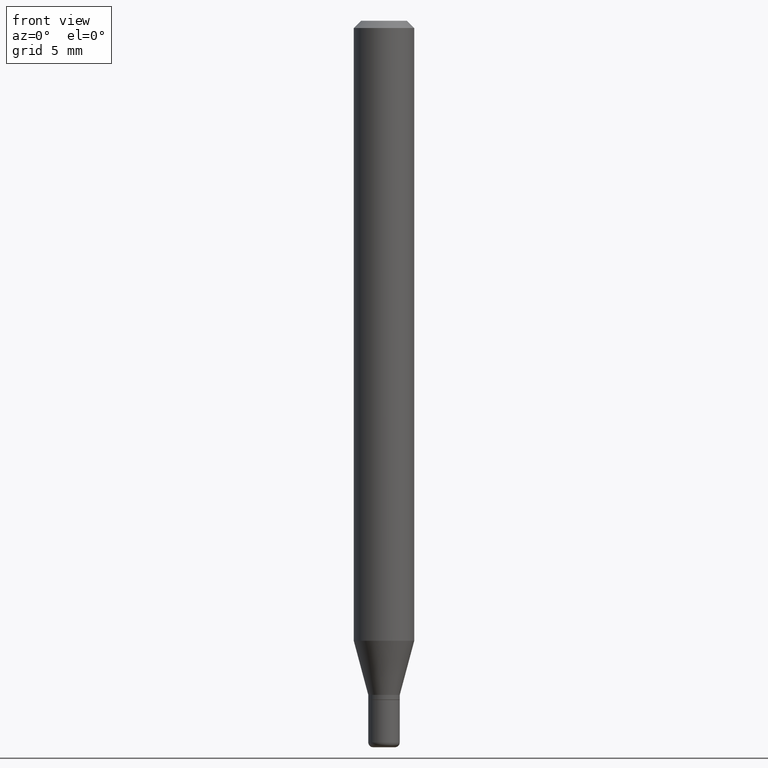
[diagram: clean part render]
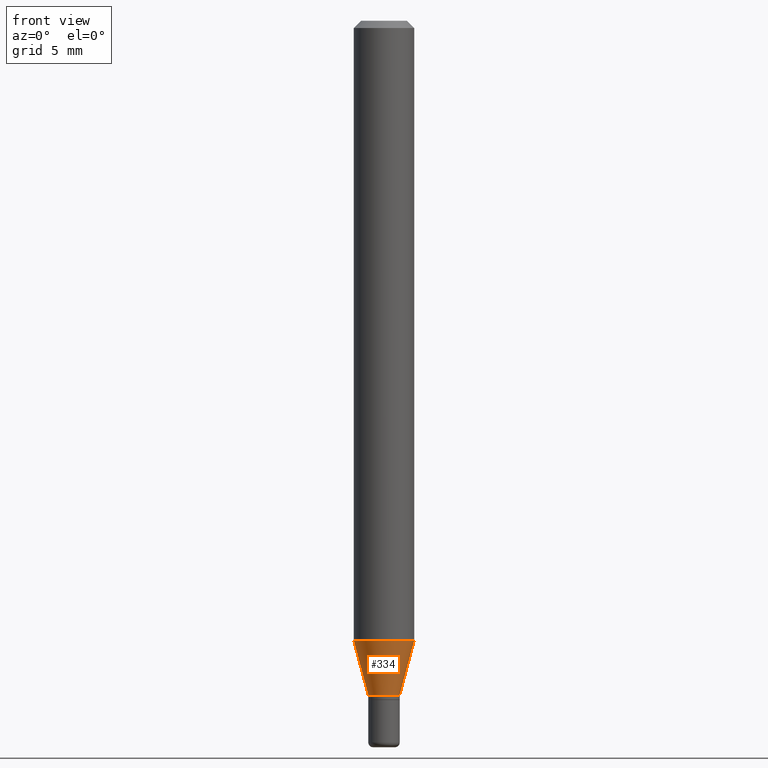
[diagram: same view with one face highlighted and labeled with its STEP entity id]
A machine part, front view. The second image highlights one B-rep face of the part: STEP entity #334.
In plain terms, the highlighted conical surface has half-angle 15 deg.
Its self-contained STEP definition (entity closure, byte-faithful):
#30 = VECTOR ( 'NONE', #476, 39.37007874015748143 ) ;
#43 = DIRECTION ( 'NONE',  ( -2.445468806185136597E-29, 3.491481338843145583E-15, 1.000000000000000000 ) ) ;
#45 = FACE_OUTER_BOUND ( 'NONE', #265, .T. ) ;
#50 = VERTEX_POINT ( 'NONE', #458 ) ;
#64 = AXIS2_PLACEMENT_3D ( 'NONE', #289, #43, #414 ) ;
#97 = ORIENTED_EDGE ( 'NONE', *, *, #402, .F. ) ;
#120 = CARTESIAN_POINT ( 'NONE',  ( 0.03249999999999998029, -5.087088310694461770E-15, -1.392000000000000126 ) ) ;
#130 = AXIS2_PLACEMENT_3D ( 'NONE', #386, #235, #468 ) ;
#146 = CIRCLE ( 'NONE', #276, 0.03249999999999998029 ) ;
#153 = CARTESIAN_POINT ( 'NONE',  ( 0.06250000000000000000, -4.905665618517812299E-15, -1.280038475772933504 ) ) ;
#162 = DIRECTION ( 'NONE',  ( 0.2588190451025204064, 1.565188264969629659E-15, 0.9659258262890684232 ) ) ;
#189 = CARTESIAN_POINT ( 'NONE',  ( -0.06250000000000000000, -4.025141241312358014E-15, -1.280038475772933504 ) ) ;
#206 = ORIENTED_EDGE ( 'NONE', *, *, #450, .F. ) ;
#232 = VECTOR ( 'NONE', #162, 39.37007874015748143 ) ;
#235 = DIRECTION ( 'NONE',  ( -2.445468806185136597E-29, 3.491481338843145583E-15, 1.000000000000000000 ) ) ;
#237 = DIRECTION ( 'NONE',  ( -2.445468806185136597E-29, 3.491481338843145583E-15, 1.000000000000000000 ) ) ;
#238 = CONICAL_SURFACE ( 'NONE', #64, 0.03249999999999998029, 0.2617993877991490748 ) ;
#240 = VERTEX_POINT ( 'NONE', #189 ) ;
#255 = EDGE_CURVE ( 'NONE', #495, #415, #475, .T. ) ;
#265 = EDGE_LOOP ( 'NONE', ( #206, #455, #487, #97 ) ) ;
#266 = DIRECTION ( 'NONE',  ( 1.000000000000000000, -6.982962677686262766E-15, 0.000000000000000000 ) ) ;
#276 = AXIS2_PLACEMENT_3D ( 'NONE', #303, #237, #266 ) ;
#289 = CARTESIAN_POINT ( 'NONE',  ( 3.404092578209710223E-29, -4.860142023669658418E-15, -1.392000000000000126 ) ) ;
#303 = CARTESIAN_POINT ( 'NONE',  ( 3.404092578209710223E-29, -4.860142023669658418E-15, -1.392000000000000126 ) ) ;
#334 = ADVANCED_FACE ( 'NONE', ( #45 ), #238, .T. ) ;
#366 = CARTESIAN_POINT ( 'NONE',  ( 0.03249999999999998029, -5.087088310694461770E-15, -1.392000000000000126 ) ) ;
#380 = CIRCLE ( 'NONE', #130, 0.06250000000000000000 ) ;
#386 = CARTESIAN_POINT ( 'NONE',  ( 3.130294163219477608E-29, -4.469230451162420630E-15, -1.280038475772933504 ) ) ;
#387 = EDGE_CURVE ( 'NONE', #50, #495, #146, .T. ) ;
#396 = LINE ( 'NONE', #444, #30 ) ;
#402 = EDGE_CURVE ( 'NONE', #240, #415, #380, .T. ) ;
#414 = DIRECTION ( 'NONE',  ( 1.000000000000000000, -6.982962677686262766E-15, 0.000000000000000000 ) ) ;
#415 = VERTEX_POINT ( 'NONE', #153 ) ;
#444 = CARTESIAN_POINT ( 'NONE',  ( -0.03249999999999998029, -4.629215634547626046E-15, -1.392000000000000126 ) ) ;
#450 = EDGE_CURVE ( 'NONE', #50, #240, #396, .T. ) ;
#455 = ORIENTED_EDGE ( 'NONE', *, *, #387, .T. ) ;
#458 = CARTESIAN_POINT ( 'NONE',  ( -0.03249999999999998029, -4.327178437929992425E-15, -1.392000000000000126 ) ) ;
#468 = DIRECTION ( 'NONE',  ( 1.000000000000000000, -6.982962677686262766E-15, 0.000000000000000000 ) ) ;
#475 = LINE ( 'NONE', #120, #232 ) ;
#476 = DIRECTION ( 'NONE',  ( -0.2588190451025204064, 5.211531920934543942E-15, 0.9659258262890684232 ) ) ;
#487 = ORIENTED_EDGE ( 'NONE', *, *, #255, .T. ) ;
#495 = VERTEX_POINT ( 'NONE', #366 ) ;